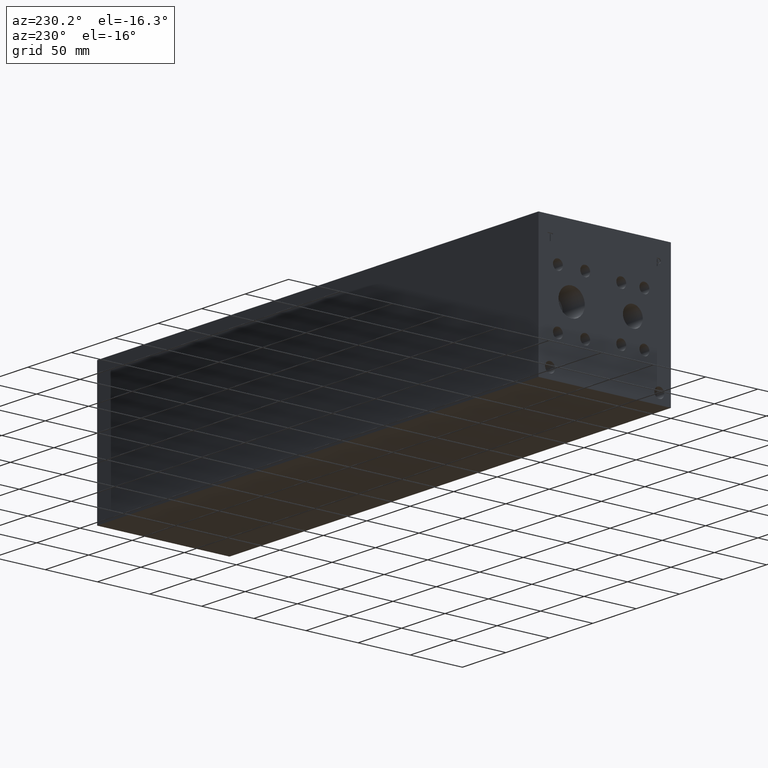
[diagram: clean part render]
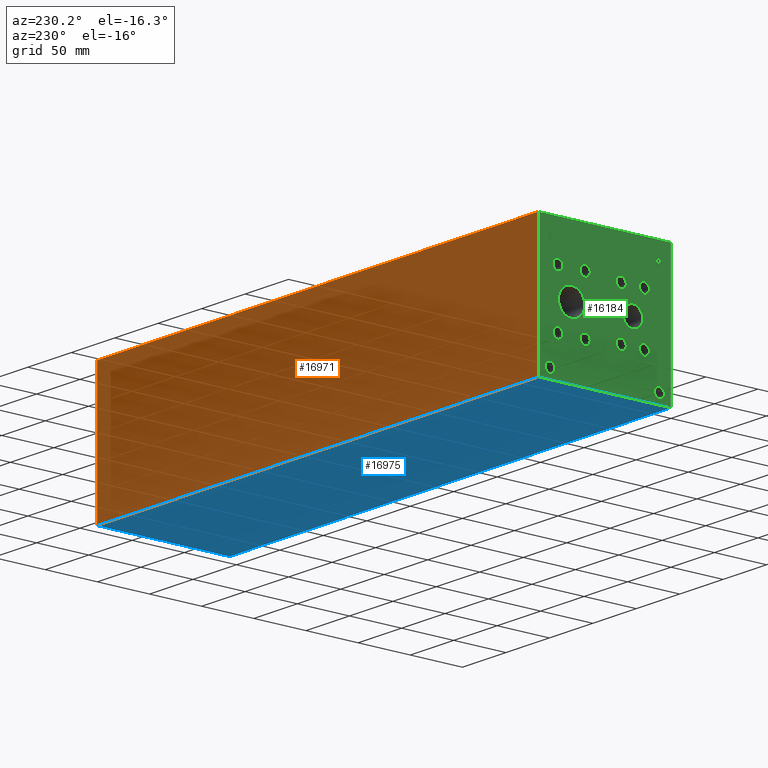
[diagram: same view with three faces highlighted in distinct colors, each labeled with its STEP entity id]
A machine part, auxiliary view with three faces highlighted in distinct colors.
Their STEP definitions:

[orange] entity #16971 — the highlighted planar face has unit normal (0, 1, 0).
#2471=FACE_OUTER_BOUND('',#3548,.T.);
#3548=EDGE_LOOP('',(#15028,#15029,#15030,#15031));
#3947=LINE('',#24061,#5361);
#4007=LINE('',#24366,#5421);
#4997=LINE('',#29380,#6411);
#4998=LINE('',#29381,#6412);
#5361=VECTOR('',#18939,10.);
#5421=VECTOR('',#19085,10.);
#6411=VECTOR('',#22389,10.);
#6412=VECTOR('',#22390,10.);
#6919=VERTEX_POINT('',#24058);
#6920=VERTEX_POINT('',#24060);
#6993=VERTEX_POINT('',#24362);
#6994=VERTEX_POINT('',#24364);
#8660=EDGE_CURVE('',#6919,#6920,#3947,.T.);
#8760=EDGE_CURVE('',#6993,#6994,#4007,.T.);
#10432=EDGE_CURVE('',#6919,#6993,#4997,.T.);
#10433=EDGE_CURVE('',#6920,#6994,#4998,.T.);
#15028=ORIENTED_EDGE('',*,*,#10432,.T.);
#15029=ORIENTED_EDGE('',*,*,#8760,.T.);
#15030=ORIENTED_EDGE('',*,*,#10433,.F.);
#15031=ORIENTED_EDGE('',*,*,#8660,.F.);
#15567=PLANE('',#18316);
#16971=ADVANCED_FACE('',(#2471),#15567,.T.);
#18316=AXIS2_PLACEMENT_3D('',#29379,#22387,#22388);
#18939=DIRECTION('',(0.,0.,1.));
#19085=DIRECTION('',(0.,0.,1.));
#22387=DIRECTION('center_axis',(0.,1.,0.));
#22388=DIRECTION('ref_axis',(-1.,0.,0.));
#22389=DIRECTION('',(-1.,0.,0.));
#22390=DIRECTION('',(-1.,0.,0.));
#24058=CARTESIAN_POINT('',(508.,127.,0.));
#24060=CARTESIAN_POINT('',(508.,127.,127.));
#24061=CARTESIAN_POINT('',(508.,127.,0.));
#24362=CARTESIAN_POINT('',(0.,127.,0.));
#24364=CARTESIAN_POINT('',(0.,127.,127.));
#24366=CARTESIAN_POINT('',(0.,127.,0.));
#29379=CARTESIAN_POINT('Origin',(508.,127.,0.));
#29380=CARTESIAN_POINT('',(508.,127.,0.));
#29381=CARTESIAN_POINT('',(508.,127.,127.));

[blue] entity #16975 — the highlighted planar face has unit normal (0, 0, 1).
#2475=FACE_OUTER_BOUND('',#3584,.T.);
#3584=EDGE_LOOP('',(#15110,#15111,#15112,#15113));
#3618=LINE('',#22470,#5032);
#3946=LINE('',#24059,#5360);
#4005=LINE('',#24363,#5419);
#4997=LINE('',#29380,#6411);
#5032=VECTOR('',#18382,10.);
#5360=VECTOR('',#18938,10.);
#5419=VECTOR('',#19083,10.);
#6411=VECTOR('',#22389,10.);
#6435=VERTEX_POINT('',#22468);
#6436=VERTEX_POINT('',#22469);
#6919=VERTEX_POINT('',#24058);
#6993=VERTEX_POINT('',#24362);
#8127=EDGE_CURVE('',#6435,#6436,#3618,.T.);
#8659=EDGE_CURVE('',#6436,#6919,#3946,.T.);
#8758=EDGE_CURVE('',#6993,#6435,#4005,.T.);
#10432=EDGE_CURVE('',#6919,#6993,#4997,.T.);
#15110=ORIENTED_EDGE('',*,*,#8127,.F.);
#15111=ORIENTED_EDGE('',*,*,#8758,.F.);
#15112=ORIENTED_EDGE('',*,*,#10432,.F.);
#15113=ORIENTED_EDGE('',*,*,#8659,.F.);
#15571=PLANE('',#18320);
#16975=ADVANCED_FACE('',(#2475),#15571,.F.);
#18320=AXIS2_PLACEMENT_3D('',#29385,#22397,#22398);
#18382=DIRECTION('',(1.,0.,0.));
#18938=DIRECTION('',(0.,1.,0.));
#19083=DIRECTION('',(0.,-1.,0.));
#22389=DIRECTION('',(-1.,0.,0.));
#22397=DIRECTION('center_axis',(0.,0.,1.));
#22398=DIRECTION('ref_axis',(1.,0.,0.));
#22468=CARTESIAN_POINT('',(0.,0.,0.));
#22469=CARTESIAN_POINT('',(508.,0.,0.));
#22470=CARTESIAN_POINT('',(0.,0.,0.));
#24058=CARTESIAN_POINT('',(508.,127.,0.));
#24059=CARTESIAN_POINT('',(508.,0.,0.));
#24362=CARTESIAN_POINT('',(0.,127.,0.));
#24363=CARTESIAN_POINT('',(0.,127.,0.));
#29380=CARTESIAN_POINT('',(508.,127.,0.));
#29385=CARTESIAN_POINT('Origin',(254.,63.5,0.));

[green] entity #16184 — the highlighted planar face has unit normal (-1, 0, 0).
#547=CIRCLE('',#17160,9.525);
#548=CIRCLE('',#17161,9.525);
#549=CIRCLE('',#17162,4.7625);
#550=CIRCLE('',#17163,4.7625);
#551=CIRCLE('',#17164,4.7625);
#552=CIRCLE('',#17165,4.7625);
#553=CIRCLE('',#17166,4.7625);
#554=CIRCLE('',#17167,4.7625);
#555=CIRCLE('',#17168,4.7625);
#556=CIRCLE('',#17169,4.7625);
#557=CIRCLE('',#17170,4.7625);
#558=CIRCLE('',#17171,4.7625);
#559=CIRCLE('',#17172,4.7625);
#560=CIRCLE('',#17173,4.7625);
#561=CIRCLE('',#17174,4.7625);
#562=CIRCLE('',#17175,4.7625);
#563=CIRCLE('',#17176,4.7625);
#564=CIRCLE('',#17177,4.7625);
#565=CIRCLE('',#17178,12.7);
#566=CIRCLE('',#17179,12.7);
#567=CIRCLE('',#17180,4.7625);
#568=CIRCLE('',#17181,4.7625);
#569=CIRCLE('',#17182,4.7625);
#570=CIRCLE('',#17183,4.7625);
#1177=B_SPLINE_CURVE_WITH_KNOTS('',2,(#24264,#24265,#24266,#24267),
 .UNSPECIFIED.,.F.,.F.,(3,1,3),(0.,1.,2.),.UNSPECIFIED.);
#1179=B_SPLINE_CURVE_WITH_KNOTS('',2,(#24285,#24286,#24287,#24288),
 .UNSPECIFIED.,.F.,.F.,(3,1,3),(0.,1.,2.),.UNSPECIFIED.);
#1181=B_SPLINE_CURVE_WITH_KNOTS('',2,(#24334,#24335,#24336,#24337),
 .UNSPECIFIED.,.F.,.F.,(3,1,3),(0.,1.,2.),.UNSPECIFIED.);
#1183=B_SPLINE_CURVE_WITH_KNOTS('',2,(#24352,#24353,#24354,#24355),
 .UNSPECIFIED.,.F.,.F.,(3,1,3),(0.,1.,2.),.UNSPECIFIED.);
#1456=FACE_BOUND('',#2659,.T.);
#1457=FACE_BOUND('',#2660,.T.);
#1458=FACE_BOUND('',#2661,.T.);
#1459=FACE_BOUND('',#2662,.T.);
#1460=FACE_BOUND('',#2663,.T.);
#1461=FACE_BOUND('',#2664,.T.);
#1462=FACE_BOUND('',#2665,.T.);
#1463=FACE_BOUND('',#2666,.T.);
#1464=FACE_BOUND('',#2667,.T.);
#1465=FACE_BOUND('',#2668,.T.);
#1466=FACE_BOUND('',#2669,.T.);
#1467=FACE_BOUND('',#2670,.T.);
#1468=FACE_BOUND('',#2671,.T.);
#1469=FACE_BOUND('',#2672,.T.);
#1684=FACE_OUTER_BOUND('',#2658,.T.);
#2658=EDGE_LOOP('',(#11310,#11311,#11312,#11313));
#2659=EDGE_LOOP('',(#11314,#11315,#11316,#11317,#11318,#11319,#11320,#11321));
#2660=EDGE_LOOP('',(#11322,#11323));
#2661=EDGE_LOOP('',(#11324,#11325));
#2662=EDGE_LOOP('',(#11326,#11327));
#2663=EDGE_LOOP('',(#11328,#11329));
#2664=EDGE_LOOP('',(#11330,#11331));
#2665=EDGE_LOOP('',(#11332,#11333));
#2666=EDGE_LOOP('',(#11334,#11335));
#2667=EDGE_LOOP('',(#11336,#11337));
#2668=EDGE_LOOP('',(#11338,#11339));
#2669=EDGE_LOOP('',(#11340,#11341));
#2670=EDGE_LOOP('',(#11342,#11343));
#2671=EDGE_LOOP('',(#11344,#11345));
#2672=EDGE_LOOP('',(#11346,#11347,#11348,#11349,#11350,#11351,#11352,#11353,
#11354));
#3621=LINE('',#22475,#5035);
#3949=LINE('',#24114,#5363);
#3953=LINE('',#24122,#5367);
#3956=LINE('',#24128,#5370);
#3959=LINE('',#24134,#5373);
#3962=LINE('',#24140,#5376);
#3965=LINE('',#24146,#5379);
#3968=LINE('',#24152,#5382);
#3971=LINE('',#24157,#5385);
#3989=LINE('',#24297,#5403);
#3992=LINE('',#24303,#5406);
#3995=LINE('',#24309,#5409);
#3998=LINE('',#24315,#5412);
#4001=LINE('',#24321,#5415);
#4005=LINE('',#24363,#5419);
#4006=LINE('',#24365,#5420);
#4007=LINE('',#24366,#5421);
#5035=VECTOR('',#18385,10.);
#5363=VECTOR('',#18991,10.);
#5367=VECTOR('',#18997,10.);
#5370=VECTOR('',#19002,10.);
#5373=VECTOR('',#19007,10.);
#5376=VECTOR('',#19012,10.);
#5379=VECTOR('',#19017,10.);
#5382=VECTOR('',#19022,10.);
#5385=VECTOR('',#19027,10.);
#5403=VECTOR('',#19055,10.);
#5406=VECTOR('',#19060,10.);
#5409=VECTOR('',#19065,10.);
#5412=VECTOR('',#19070,10.);
#5415=VECTOR('',#19075,10.);
#5419=VECTOR('',#19083,10.);
#5420=VECTOR('',#19084,10.);
#5421=VECTOR('',#19085,10.);
#6435=VERTEX_POINT('',#22468);
#6438=VERTEX_POINT('',#22473);
#6945=VERTEX_POINT('',#24112);
#6946=VERTEX_POINT('',#24113);
#6949=VERTEX_POINT('',#24121);
#6951=VERTEX_POINT('',#24127);
#6953=VERTEX_POINT('',#24133);
#6955=VERTEX_POINT('',#24139);
#6957=VERTEX_POINT('',#24145);
#6959=VERTEX_POINT('',#24151);
#6975=VERTEX_POINT('',#24262);
#6976=VERTEX_POINT('',#24263);
#6979=VERTEX_POINT('',#24284);
#6981=VERTEX_POINT('',#24296);
#6983=VERTEX_POINT('',#24302);
#6985=VERTEX_POINT('',#24308);
#6987=VERTEX_POINT('',#24314);
#6989=VERTEX_POINT('',#24320);
#6991=VERTEX_POINT('',#24333);
#6993=VERTEX_POINT('',#24362);
#6994=VERTEX_POINT('',#24364);
#6995=VERTEX_POINT('',#24367);
#6996=VERTEX_POINT('',#24368);
#6997=VERTEX_POINT('',#24371);
#6998=VERTEX_POINT('',#24372);
#6999=VERTEX_POINT('',#24375);
#7000=VERTEX_POINT('',#24376);
#7001=VERTEX_POINT('',#24379);
#7002=VERTEX_POINT('',#24380);
#7003=VERTEX_POINT('',#24383);
#7004=VERTEX_POINT('',#24384);
#7005=VERTEX_POINT('',#24387);
#7006=VERTEX_POINT('',#24388);
#7007=VERTEX_POINT('',#24391);
#7008=VERTEX_POINT('',#24392);
#7009=VERTEX_POINT('',#24395);
#7010=VERTEX_POINT('',#24396);
#7011=VERTEX_POINT('',#24399);
#7012=VERTEX_POINT('',#24400);
#7013=VERTEX_POINT('',#24403);
#7014=VERTEX_POINT('',#24404);
#7015=VERTEX_POINT('',#24407);
#7016=VERTEX_POINT('',#24408);
#7017=VERTEX_POINT('',#24411);
#7018=VERTEX_POINT('',#24412);
#8130=EDGE_CURVE('',#6435,#6438,#3621,.T.);
#8686=EDGE_CURVE('',#6945,#6946,#3949,.T.);
#8690=EDGE_CURVE('',#6949,#6945,#3953,.T.);
#8693=EDGE_CURVE('',#6951,#6949,#3956,.T.);
#8696=EDGE_CURVE('',#6953,#6951,#3959,.T.);
#8699=EDGE_CURVE('',#6955,#6953,#3962,.T.);
#8702=EDGE_CURVE('',#6957,#6955,#3965,.T.);
#8705=EDGE_CURVE('',#6959,#6957,#3968,.T.);
#8708=EDGE_CURVE('',#6946,#6959,#3971,.T.);
#8731=EDGE_CURVE('',#6975,#6976,#1177,.T.);
#8735=EDGE_CURVE('',#6979,#6975,#1179,.T.);
#8738=EDGE_CURVE('',#6981,#6979,#3989,.T.);
#8741=EDGE_CURVE('',#6983,#6981,#3992,.T.);
#8744=EDGE_CURVE('',#6985,#6983,#3995,.T.);
#8747=EDGE_CURVE('',#6987,#6985,#3998,.T.);
#8750=EDGE_CURVE('',#6989,#6987,#4001,.T.);
#8753=EDGE_CURVE('',#6991,#6989,#1181,.T.);
#8756=EDGE_CURVE('',#6976,#6991,#1183,.T.);
#8758=EDGE_CURVE('',#6993,#6435,#4005,.T.);
#8759=EDGE_CURVE('',#6994,#6438,#4006,.T.);
#8760=EDGE_CURVE('',#6993,#6994,#4007,.T.);
#8761=EDGE_CURVE('',#6995,#6996,#547,.T.);
#8762=EDGE_CURVE('',#6996,#6995,#548,.T.);
#8763=EDGE_CURVE('',#6997,#6998,#549,.T.);
#8764=EDGE_CURVE('',#6998,#6997,#550,.T.);
#8765=EDGE_CURVE('',#6999,#7000,#551,.T.);
#8766=EDGE_CURVE('',#7000,#6999,#552,.T.);
#8767=EDGE_CURVE('',#7001,#7002,#553,.T.);
#8768=EDGE_CURVE('',#7002,#7001,#554,.T.);
#8769=EDGE_CURVE('',#7003,#7004,#555,.T.);
#8770=EDGE_CURVE('',#7004,#7003,#556,.T.);
#8771=EDGE_CURVE('',#7005,#7006,#557,.T.);
#8772=EDGE_CURVE('',#7006,#7005,#558,.T.);
#8773=EDGE_CURVE('',#7007,#7008,#559,.T.);
#8774=EDGE_CURVE('',#7008,#7007,#560,.T.);
#8775=EDGE_CURVE('',#7009,#7010,#561,.T.);
#8776=EDGE_CURVE('',#7010,#7009,#562,.T.);
#8777=EDGE_CURVE('',#7011,#7012,#563,.T.);
#8778=EDGE_CURVE('',#7012,#7011,#564,.T.);
#8779=EDGE_CURVE('',#7013,#7014,#565,.T.);
#8780=EDGE_CURVE('',#7014,#7013,#566,.T.);
#8781=EDGE_CURVE('',#7015,#7016,#567,.T.);
#8782=EDGE_CURVE('',#7016,#7015,#568,.T.);
#8783=EDGE_CURVE('',#7017,#7018,#569,.T.);
#8784=EDGE_CURVE('',#7018,#7017,#570,.T.);
#11310=ORIENTED_EDGE('',*,*,#8758,.T.);
#11311=ORIENTED_EDGE('',*,*,#8130,.T.);
#11312=ORIENTED_EDGE('',*,*,#8759,.F.);
#11313=ORIENTED_EDGE('',*,*,#8760,.F.);
#11314=ORIENTED_EDGE('',*,*,#8686,.T.);
#11315=ORIENTED_EDGE('',*,*,#8708,.T.);
#11316=ORIENTED_EDGE('',*,*,#8705,.T.);
#11317=ORIENTED_EDGE('',*,*,#8702,.T.);
#11318=ORIENTED_EDGE('',*,*,#8699,.T.);
#11319=ORIENTED_EDGE('',*,*,#8696,.T.);
#11320=ORIENTED_EDGE('',*,*,#8693,.T.);
#11321=ORIENTED_EDGE('',*,*,#8690,.T.);
#11322=ORIENTED_EDGE('',*,*,#8761,.T.);
#11323=ORIENTED_EDGE('',*,*,#8762,.T.);
#11324=ORIENTED_EDGE('',*,*,#8763,.T.);
#11325=ORIENTED_EDGE('',*,*,#8764,.T.);
#11326=ORIENTED_EDGE('',*,*,#8765,.T.);
#11327=ORIENTED_EDGE('',*,*,#8766,.T.);
#11328=ORIENTED_EDGE('',*,*,#8767,.T.);
#11329=ORIENTED_EDGE('',*,*,#8768,.T.);
#11330=ORIENTED_EDGE('',*,*,#8769,.T.);
#11331=ORIENTED_EDGE('',*,*,#8770,.T.);
#11332=ORIENTED_EDGE('',*,*,#8771,.T.);
#11333=ORIENTED_EDGE('',*,*,#8772,.T.);
#11334=ORIENTED_EDGE('',*,*,#8773,.T.);
#11335=ORIENTED_EDGE('',*,*,#8774,.T.);
#11336=ORIENTED_EDGE('',*,*,#8775,.T.);
#11337=ORIENTED_EDGE('',*,*,#8776,.T.);
#11338=ORIENTED_EDGE('',*,*,#8777,.T.);
#11339=ORIENTED_EDGE('',*,*,#8778,.T.);
#11340=ORIENTED_EDGE('',*,*,#8779,.T.);
#11341=ORIENTED_EDGE('',*,*,#8780,.T.);
#11342=ORIENTED_EDGE('',*,*,#8781,.T.);
#11343=ORIENTED_EDGE('',*,*,#8782,.T.);
#11344=ORIENTED_EDGE('',*,*,#8783,.T.);
#11345=ORIENTED_EDGE('',*,*,#8784,.T.);
#11346=ORIENTED_EDGE('',*,*,#8731,.T.);
#11347=ORIENTED_EDGE('',*,*,#8756,.T.);
#11348=ORIENTED_EDGE('',*,*,#8753,.T.);
#11349=ORIENTED_EDGE('',*,*,#8750,.T.);
#11350=ORIENTED_EDGE('',*,*,#8747,.T.);
#11351=ORIENTED_EDGE('',*,*,#8744,.T.);
#11352=ORIENTED_EDGE('',*,*,#8741,.T.);
#11353=ORIENTED_EDGE('',*,*,#8738,.T.);
#11354=ORIENTED_EDGE('',*,*,#8735,.T.);
#15177=PLANE('',#17159);
#16184=ADVANCED_FACE('',(#1684,#1456,#1457,#1458,#1459,#1460,#1461,#1462,
#1463,#1464,#1465,#1466,#1467,#1468,#1469),#15177,.T.);
#17159=AXIS2_PLACEMENT_3D('',#24361,#19081,#19082);
#17160=AXIS2_PLACEMENT_3D('',#24369,#19086,#19087);
#17161=AXIS2_PLACEMENT_3D('',#24370,#19088,#19089);
#17162=AXIS2_PLACEMENT_3D('',#24373,#19090,#19091);
#17163=AXIS2_PLACEMENT_3D('',#24374,#19092,#19093);
#17164=AXIS2_PLACEMENT_3D('',#24377,#19094,#19095);
#17165=AXIS2_PLACEMENT_3D('',#24378,#19096,#19097);
#17166=AXIS2_PLACEMENT_3D('',#24381,#19098,#19099);
#17167=AXIS2_PLACEMENT_3D('',#24382,#19100,#19101);
#17168=AXIS2_PLACEMENT_3D('',#24385,#19102,#19103);
#17169=AXIS2_PLACEMENT_3D('',#24386,#19104,#19105);
#17170=AXIS2_PLACEMENT_3D('',#24389,#19106,#19107);
#17171=AXIS2_PLACEMENT_3D('',#24390,#19108,#19109);
#17172=AXIS2_PLACEMENT_3D('',#24393,#19110,#19111);
#17173=AXIS2_PLACEMENT_3D('',#24394,#19112,#19113);
#17174=AXIS2_PLACEMENT_3D('',#24397,#19114,#19115);
#17175=AXIS2_PLACEMENT_3D('',#24398,#19116,#19117);
#17176=AXIS2_PLACEMENT_3D('',#24401,#19118,#19119);
#17177=AXIS2_PLACEMENT_3D('',#24402,#19120,#19121);
#17178=AXIS2_PLACEMENT_3D('',#24405,#19122,#19123);
#17179=AXIS2_PLACEMENT_3D('',#24406,#19124,#19125);
#17180=AXIS2_PLACEMENT_3D('',#24409,#19126,#19127);
#17181=AXIS2_PLACEMENT_3D('',#24410,#19128,#19129);
#17182=AXIS2_PLACEMENT_3D('',#24413,#19130,#19131);
#17183=AXIS2_PLACEMENT_3D('',#24414,#19132,#19133);
#18385=DIRECTION('',(0.,0.,1.));
#18991=DIRECTION('',(0.,1.,0.));
#18997=DIRECTION('',(0.,3.17280044688052E-15,-1.));
#19002=DIRECTION('',(0.,1.,0.));
#19007=DIRECTION('',(0.,0.,-1.));
#19012=DIRECTION('',(0.,-1.,-3.47984565141734E-15));
#19017=DIRECTION('',(0.,0.,1.));
#19022=DIRECTION('',(0.,1.,0.));
#19027=DIRECTION('',(0.,-3.17280044688052E-15,1.));
#19055=DIRECTION('',(0.,-1.,0.));
#19060=DIRECTION('',(0.,-3.14708893596576E-15,1.));
#19065=DIRECTION('',(0.,1.,0.));
#19070=DIRECTION('',(0.,2.81413604853751E-15,-1.));
#19075=DIRECTION('',(0.,1.,0.));
#19081=DIRECTION('center_axis',(-1.,0.,0.));
#19082=DIRECTION('ref_axis',(0.,-1.,0.));
#19083=DIRECTION('',(0.,-1.,0.));
#19084=DIRECTION('',(0.,-1.,0.));
#19085=DIRECTION('',(0.,0.,1.));
#19086=DIRECTION('center_axis',(1.,0.,0.));
#19087=DIRECTION('ref_axis',(0.,0.,1.));
#19088=DIRECTION('center_axis',(1.,0.,0.));
#19089=DIRECTION('ref_axis',(0.,0.,1.));
#19090=DIRECTION('center_axis',(1.,0.,0.));
#19091=DIRECTION('ref_axis',(0.,1.,0.));
#19092=DIRECTION('center_axis',(1.,0.,0.));
#19093=DIRECTION('ref_axis',(0.,1.,0.));
#19094=DIRECTION('center_axis',(1.,0.,0.));
#19095=DIRECTION('ref_axis',(0.,1.,0.));
#19096=DIRECTION('center_axis',(1.,0.,0.));
#19097=DIRECTION('ref_axis',(0.,1.,0.));
#19098=DIRECTION('center_axis',(1.,0.,0.));
#19099=DIRECTION('ref_axis',(0.,1.,0.));
#19100=DIRECTION('center_axis',(1.,0.,0.));
#19101=DIRECTION('ref_axis',(0.,1.,0.));
#19102=DIRECTION('center_axis',(1.,0.,0.));
#19103=DIRECTION('ref_axis',(0.,1.,0.));
#19104=DIRECTION('center_axis',(1.,0.,0.));
#19105=DIRECTION('ref_axis',(0.,1.,0.));
#19106=DIRECTION('center_axis',(1.,0.,0.));
#19107=DIRECTION('ref_axis',(0.,1.,0.));
#19108=DIRECTION('center_axis',(1.,0.,0.));
#19109=DIRECTION('ref_axis',(0.,1.,0.));
#19110=DIRECTION('center_axis',(1.,0.,0.));
#19111=DIRECTION('ref_axis',(0.,1.,0.));
#19112=DIRECTION('center_axis',(1.,0.,0.));
#19113=DIRECTION('ref_axis',(0.,1.,0.));
#19114=DIRECTION('center_axis',(1.,0.,0.));
#19115=DIRECTION('ref_axis',(0.,1.,0.));
#19116=DIRECTION('center_axis',(1.,0.,0.));
#19117=DIRECTION('ref_axis',(0.,1.,0.));
#19118=DIRECTION('center_axis',(1.,0.,0.));
#19119=DIRECTION('ref_axis',(0.,1.,0.));
#19120=DIRECTION('center_axis',(1.,0.,0.));
#19121=DIRECTION('ref_axis',(0.,1.,0.));
#19122=DIRECTION('center_axis',(1.,0.,0.));
#19123=DIRECTION('ref_axis',(0.,0.,1.));
#19124=DIRECTION('center_axis',(1.,0.,0.));
#19125=DIRECTION('ref_axis',(0.,0.,1.));
#19126=DIRECTION('center_axis',(1.,0.,0.));
#19127=DIRECTION('ref_axis',(0.,1.,0.));
#19128=DIRECTION('center_axis',(1.,0.,0.));
#19129=DIRECTION('ref_axis',(0.,1.,0.));
#19130=DIRECTION('center_axis',(1.,0.,0.));
#19131=DIRECTION('ref_axis',(0.,1.,0.));
#19132=DIRECTION('center_axis',(1.,0.,0.));
#19133=DIRECTION('ref_axis',(0.,1.,0.));
#22468=CARTESIAN_POINT('',(0.,0.,0.));
#22473=CARTESIAN_POINT('',(0.,0.,127.));
#22475=CARTESIAN_POINT('',(0.,0.,0.));
#24112=CARTESIAN_POINT('',(0.,115.299584728547,106.3625));
#24113=CARTESIAN_POINT('',(0.,116.143506920087,106.3625));
#24114=CARTESIAN_POINT('',(0.,121.149792364274,106.3625));
#24121=CARTESIAN_POINT('',(0.,115.299584728547,111.961203319482));
#24122=CARTESIAN_POINT('',(0.,115.299584728547,55.9806016597408));
#24127=CARTESIAN_POINT('',(0.,113.169195781612,111.961203319482));
#24128=CARTESIAN_POINT('',(0.,120.084597890806,111.961203319482));
#24133=CARTESIAN_POINT('',(0.,113.169195781612,112.712499904633));
#24134=CARTESIAN_POINT('',(0.,113.169195781612,56.3562499523163));
#24139=CARTESIAN_POINT('',(0.,118.273895867022,112.712499904633));
#24140=CARTESIAN_POINT('',(0.,122.636947933511,112.712499904633));
#24145=CARTESIAN_POINT('',(0.,118.273895867022,111.961203319482));
#24146=CARTESIAN_POINT('',(0.,118.273895867022,55.9806016597408));
#24151=CARTESIAN_POINT('',(0.,116.143506920086,111.961203319482));
#24152=CARTESIAN_POINT('',(0.,121.571753460043,111.961203319482));
#24157=CARTESIAN_POINT('',(0.,116.143506920087,53.18125));
#24262=CARTESIAN_POINT('',(0.,10.3869327976406,112.316268143971));
#24263=CARTESIAN_POINT('',(0.,9.63049034546799,110.798237372604));
#24264=CARTESIAN_POINT('Ctrl Pts',(0.,10.3869327976406,112.316268143971));
#24265=CARTESIAN_POINT('Ctrl Pts',(0.,10.0318679731514,112.074412393956));
#24266=CARTESIAN_POINT('Ctrl Pts',(0.,9.63049034546799,111.328261675827));
#24267=CARTESIAN_POINT('Ctrl Pts',(0.,9.63049034546799,110.798237372604));
#24284=CARTESIAN_POINT('',(0.,12.0490478456117,112.712499904633));
#24285=CARTESIAN_POINT('Ctrl Pts',(0.,12.0490478456117,112.712499904633));
#24286=CARTESIAN_POINT('Ctrl Pts',(0.,11.4830024732376,112.712499904633));
#24287=CARTESIAN_POINT('Ctrl Pts',(0.,10.6905389519139,112.527248691856));
#24288=CARTESIAN_POINT('Ctrl Pts',(0.,10.3869327976406,112.316268143971));
#24296=CARTESIAN_POINT('',(0.,13.6442666223022,112.712499904633));
#24297=CARTESIAN_POINT('',(0.,70.3221333111511,112.712499904633));
#24302=CARTESIAN_POINT('',(0.,13.6442666223022,106.3625));
#24303=CARTESIAN_POINT('',(0.,13.6442666223024,53.1812499999998));
#24308=CARTESIAN_POINT('',(0.,12.8003444307627,106.3625));
#24309=CARTESIAN_POINT('',(0.,69.9001722153814,106.3625));
#24314=CARTESIAN_POINT('',(0.,12.8003444307627,108.729598829928));
#24315=CARTESIAN_POINT('',(0.,12.8003444307628,54.3647994149638));
#24320=CARTESIAN_POINT('',(0.,12.0850689147628,108.729598829928));
#24321=CARTESIAN_POINT('',(0.,69.5425344573814,108.729598829928));
#24333=CARTESIAN_POINT('',(0.,10.1862439837989,109.38826980869));
#24334=CARTESIAN_POINT('Ctrl Pts',(0.,10.1862439837989,109.38826980869));
#24335=CARTESIAN_POINT('Ctrl Pts',(0.,10.5155794731802,109.064080186331));
#24336=CARTESIAN_POINT('Ctrl Pts',(0.,11.4058144679139,108.729598829928));
#24337=CARTESIAN_POINT('Ctrl Pts',(0.,12.0850689147628,108.729598829928));
#24352=CARTESIAN_POINT('Ctrl Pts',(0.,9.63049034546799,110.798237372604));
#24353=CARTESIAN_POINT('Ctrl Pts',(0.,9.63049034546799,110.386568010877));
#24354=CARTESIAN_POINT('Ctrl Pts',(0.,9.92380476569819,109.64556315977));
#24355=CARTESIAN_POINT('Ctrl Pts',(0.,10.1862439837989,109.38826980869));
#24361=CARTESIAN_POINT('Origin',(0.,127.,0.));
#24362=CARTESIAN_POINT('',(0.,127.,0.));
#24363=CARTESIAN_POINT('',(0.,127.,0.));
#24364=CARTESIAN_POINT('',(0.,127.,127.));
#24365=CARTESIAN_POINT('',(0.,127.,127.));
#24366=CARTESIAN_POINT('',(0.,127.,0.));
#24367=CARTESIAN_POINT('',(0.,36.5252,73.025));
#24368=CARTESIAN_POINT('',(0.,36.5252,53.975));
#24369=CARTESIAN_POINT('Origin',(0.,36.5252,63.5));
#24370=CARTESIAN_POINT('Origin',(0.,36.5252,63.5));
#24371=CARTESIAN_POINT('',(0.,113.0935,37.3126));
#24372=CARTESIAN_POINT('',(0.,103.5685,37.3126));
#24373=CARTESIAN_POINT('Origin',(0.,108.331,37.3126));
#24374=CARTESIAN_POINT('Origin',(0.,108.331,37.3126));
#24375=CARTESIAN_POINT('',(0.,86.9315,89.6874));
#24376=CARTESIAN_POINT('',(0.,77.4065,89.6874));
#24377=CARTESIAN_POINT('Origin',(0.,82.169,89.6874));
#24378=CARTESIAN_POINT('Origin',(0.,82.169,89.6874));
#24379=CARTESIAN_POINT('',(0.,52.3875,87.2998));
#24380=CARTESIAN_POINT('',(0.,42.8625,87.2998));
#24381=CARTESIAN_POINT('Origin',(0.,47.625,87.2998));
#24382=CARTESIAN_POINT('Origin',(0.,47.625,87.2998));
#24383=CARTESIAN_POINT('',(0.,30.1879,39.7002));
#24384=CARTESIAN_POINT('',(0.,20.6629,39.7002));
#24385=CARTESIAN_POINT('Origin',(0.,25.4254,39.7002));
#24386=CARTESIAN_POINT('Origin',(0.,25.4254,39.7002));
#24387=CARTESIAN_POINT('',(0.,30.1879,87.2998));
#24388=CARTESIAN_POINT('',(0.,20.6629,87.2998));
#24389=CARTESIAN_POINT('Origin',(0.,25.4254,87.2998));
#24390=CARTESIAN_POINT('Origin',(0.,25.4254,87.2998));
#24391=CARTESIAN_POINT('',(0.,52.3875,39.7002));
#24392=CARTESIAN_POINT('',(0.,42.8625,39.7002));
#24393=CARTESIAN_POINT('Origin',(0.,47.625,39.7002));
#24394=CARTESIAN_POINT('Origin',(0.,47.625,39.7002));
#24395=CARTESIAN_POINT('',(0.,113.0935,89.69248));
#24396=CARTESIAN_POINT('',(0.,103.5685,89.69248));
#24397=CARTESIAN_POINT('Origin',(0.,108.331,89.69248));
#24398=CARTESIAN_POINT('Origin',(0.,108.331,89.69248));
#24399=CARTESIAN_POINT('',(0.,86.9315,37.30752));
#24400=CARTESIAN_POINT('',(0.,77.4065,37.30752));
#24401=CARTESIAN_POINT('Origin',(0.,82.169,37.30752));
#24402=CARTESIAN_POINT('Origin',(0.,82.169,37.30752));
#24403=CARTESIAN_POINT('',(0.,95.25,76.2));
#24404=CARTESIAN_POINT('',(0.,95.25,50.8));
#24405=CARTESIAN_POINT('Origin',(0.,95.25,63.5));
#24406=CARTESIAN_POINT('Origin',(0.,95.25,63.5));
#24407=CARTESIAN_POINT('',(0.,15.8877,9.52500000000001));
#24408=CARTESIAN_POINT('',(0.,6.3627,9.52500000000001));
#24409=CARTESIAN_POINT('Origin',(0.,11.1252,9.52500000000001));
#24410=CARTESIAN_POINT('Origin',(0.,11.1252,9.52500000000001));
#24411=CARTESIAN_POINT('',(0.,120.6627,9.52500000000001));
#24412=CARTESIAN_POINT('',(0.,111.1377,9.52500000000001));
#24413=CARTESIAN_POINT('Origin',(0.,115.9002,9.52500000000001));
#24414=CARTESIAN_POINT('Origin',(0.,115.9002,9.52500000000001));